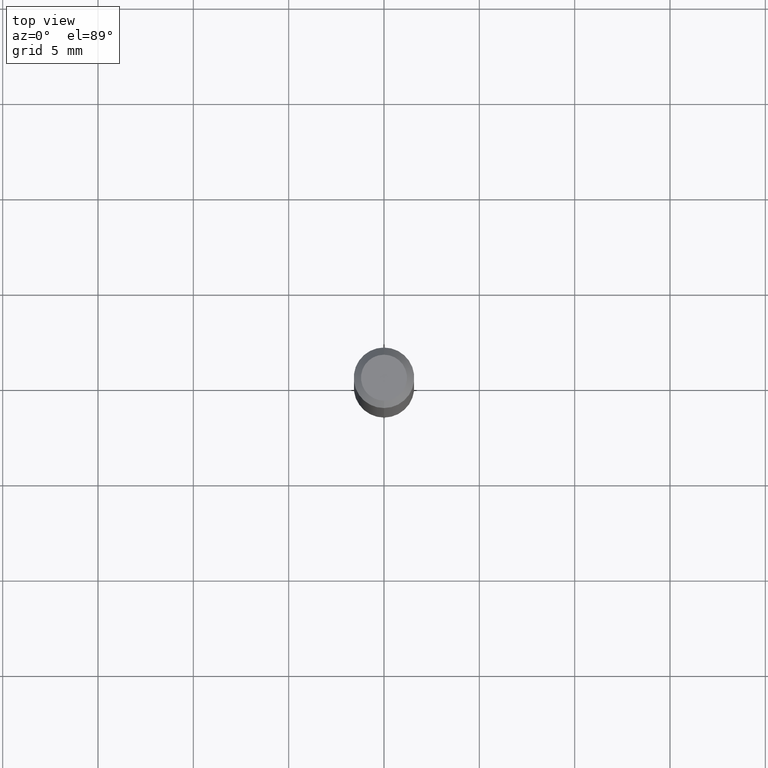
[diagram: clean part render]
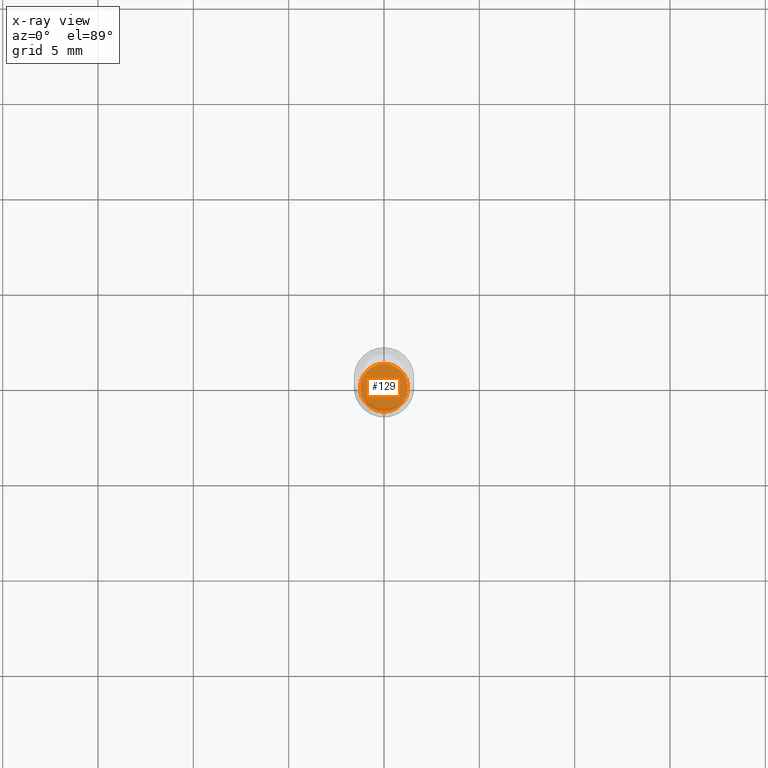
[diagram: x-ray — body ghosted, one internal face saturated and labeled with its STEP entity id]
A machine part, top view, then the same camera in x-ray: the body is ghosted and one INTERNAL B-rep face — a face not visible from any outside direction — is saturated and labeled: STEP entity #129.
In plain terms, the highlighted planar face has unit normal (-0, 0, 1).
Its self-contained STEP definition (entity closure, byte-faithful):
#11 = EDGE_LOOP ( 'NONE', ( #486, #381 ) ) ;
#34 = VERTEX_POINT ( 'NONE', #46 ) ;
#36 = AXIS2_PLACEMENT_3D ( 'NONE', #135, #296, #87 ) ;
#46 = CARTESIAN_POINT ( 'NONE',  ( 3.534950110406793936E-16, 0.04949999999999581124, -1.200000000000000400 ) ) ;
#87 = DIRECTION ( 'NONE',  ( -6.982962677686265922E-15, -1.000000000000000000, 3.491575766201267725E-15 ) ) ;
#121 = CARTESIAN_POINT ( 'NONE',  ( 2.934483441496062072E-29, -4.189890919441521744E-15, -1.200000000000000178 ) ) ;
#129 = ADVANCED_FACE ( 'NONE', ( #410 ), #493, .F. ) ;
#130 = AXIS2_PLACEMENT_3D ( 'NONE', #121, #361, #248 ) ;
#135 = CARTESIAN_POINT ( 'NONE',  ( 2.934483441496062072E-29, -4.189890919441521744E-15, -1.200000000000000178 ) ) ;
#248 = DIRECTION ( 'NONE',  ( -6.982962677686265922E-15, -1.000000000000000000, 2.759442417842689940E-15 ) ) ;
#256 = CARTESIAN_POINT ( 'NONE',  ( -3.456566525454408447E-16, -0.04950000000000419342, -1.199999999999999956 ) ) ;
#265 = CIRCLE ( 'NONE', #459, 0.04950000000000000233 ) ;
#266 = CARTESIAN_POINT ( 'NONE',  ( 2.934483441496062072E-29, -4.189890919441521744E-15, -1.200000000000000178 ) ) ;
#275 = EDGE_CURVE ( 'NONE', #432, #34, #343, .T. ) ;
#296 = DIRECTION ( 'NONE',  ( -2.445402867913384219E-29, 3.491575766201267725E-15, 1.000000000000000000 ) ) ;
#343 = CIRCLE ( 'NONE', #130, 0.04950000000000000233 ) ;
#361 = DIRECTION ( 'NONE',  ( -2.445402867913384779E-29, 3.491575766201267725E-15, 1.000000000000000000 ) ) ;
#376 = DIRECTION ( 'NONE',  ( -2.445402867913384779E-29, 3.491575766201267725E-15, 1.000000000000000000 ) ) ;
#381 = ORIENTED_EDGE ( 'NONE', *, *, #445, .F. ) ;
#410 = FACE_OUTER_BOUND ( 'NONE', #11, .T. ) ;
#432 = VERTEX_POINT ( 'NONE', #256 ) ;
#445 = EDGE_CURVE ( 'NONE', #34, #432, #265, .T. ) ;
#459 = AXIS2_PLACEMENT_3D ( 'NONE', #266, #376, #497 ) ;
#486 = ORIENTED_EDGE ( 'NONE', *, *, #275, .F. ) ;
#493 = PLANE ( 'NONE',  #36 ) ;
#497 = DIRECTION ( 'NONE',  ( -6.982962677686265922E-15, -1.000000000000000000, 2.759442417842689940E-15 ) ) ;